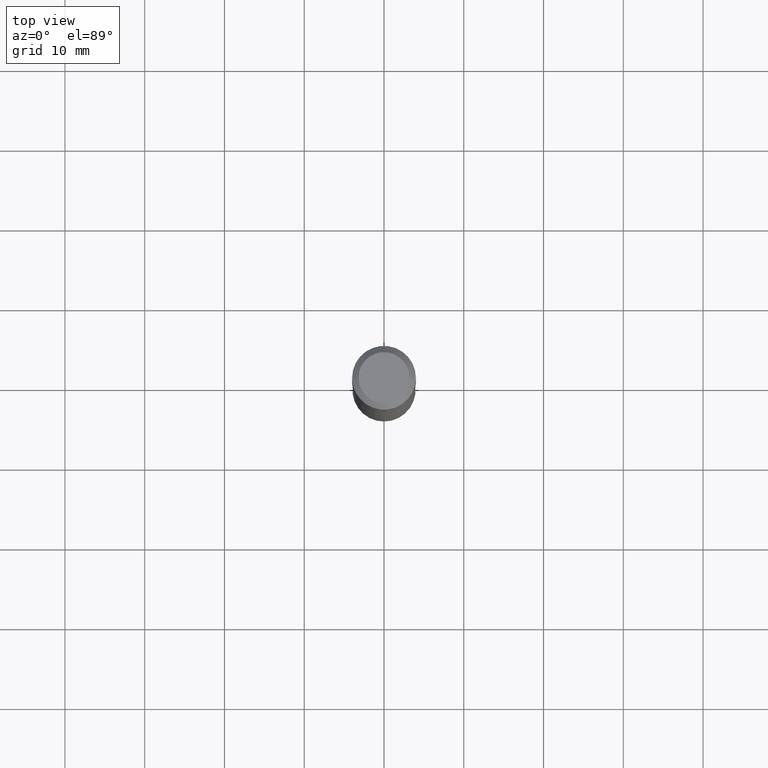
[diagram: clean part render]
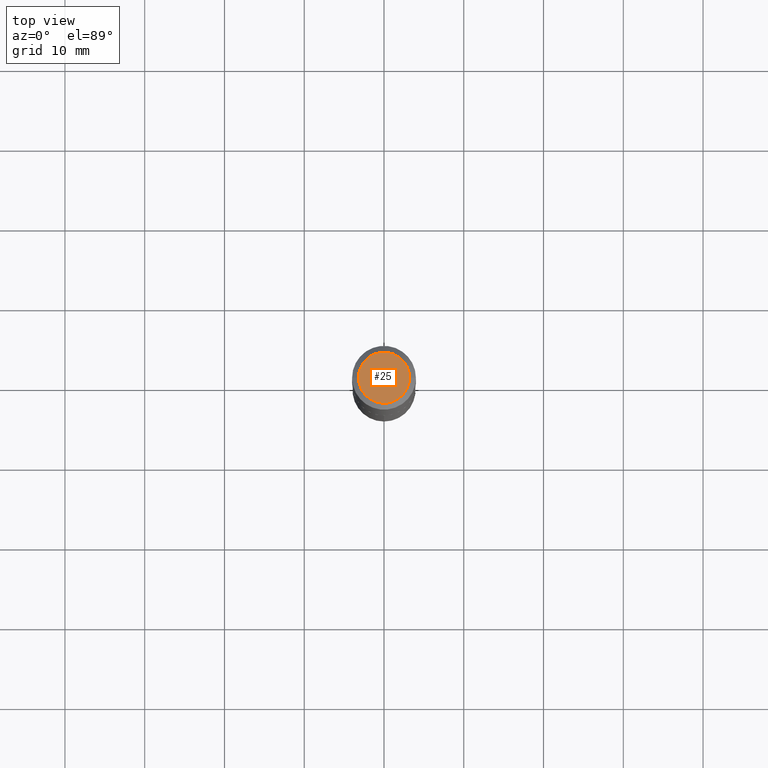
[diagram: same view with one face highlighted and labeled with its STEP entity id]
A machine part, top view. The second image highlights one B-rep face of the part: STEP entity #25.
In plain terms, the highlighted planar face has unit normal (0, -0, -1).
Its self-contained STEP definition (entity closure, byte-faithful):
#13 = DIRECTION ( 'NONE',  ( -2.445468806185136597E-29, 3.491481338843145583E-15, 1.000000000000000000 ) ) ;
#25 = ADVANCED_FACE ( 'NONE', ( #244 ), #361, .F. ) ;
#53 = DIRECTION ( 'NONE',  ( -1.000000000000000000, 6.982962677686265922E-15, -4.876176775795935793E-29 ) ) ;
#58 = ORIENTED_EDGE ( 'NONE', *, *, #328, .T. ) ;
#70 = CARTESIAN_POINT ( 'NONE',  ( -0.1260000000000000009, 9.348441284752484904E-16, 3.860086710906114178E-18 ) ) ;
#116 = DIRECTION ( 'NONE',  ( 1.000000000000000000, -6.982962677686265922E-15, 4.876281427513067258E-29 ) ) ;
#122 = AXIS2_PLACEMENT_3D ( 'NONE', #283, #356, #53 ) ;
#148 = CARTESIAN_POINT ( 'NONE',  ( -9.439721640706201686E-47, 1.347742071746726764E-32, 3.860086710912459732E-18 ) ) ;
#149 = EDGE_CURVE ( 'NONE', #481, #161, #482, .T. ) ;
#154 = ORIENTED_EDGE ( 'NONE', *, *, #149, .T. ) ;
#161 = VERTEX_POINT ( 'NONE', #70 ) ;
#169 = AXIS2_PLACEMENT_3D ( 'NONE', #464, #13, #116 ) ;
#184 = DIRECTION ( 'NONE',  ( 1.000000000000000000, -6.982962677686265922E-15, 4.876281427513067258E-29 ) ) ;
#241 = EDGE_LOOP ( 'NONE', ( #58, #154 ) ) ;
#244 = FACE_OUTER_BOUND ( 'NONE', #241, .T. ) ;
#256 = DIRECTION ( 'NONE',  ( -2.445468806185136597E-29, 3.491481338843145583E-15, 1.000000000000000000 ) ) ;
#283 = CARTESIAN_POINT ( 'NONE',  ( -4.719860820353100843E-47, 6.738710358733633822E-33, 1.930043355456229866E-18 ) ) ;
#289 = CARTESIAN_POINT ( 'NONE',  ( 0.1260000000000000009, -1.027466422270894443E-15, 3.860086710919128072E-18 ) ) ;
#328 = EDGE_CURVE ( 'NONE', #161, #481, #330, .T. ) ;
#330 = CIRCLE ( 'NONE', #169, 0.1260000000000000009 ) ;
#347 = AXIS2_PLACEMENT_3D ( 'NONE', #148, #256, #184 ) ;
#356 = DIRECTION ( 'NONE',  ( 2.438088387897960049E-29, -3.491481338843145188E-15, -1.000000000000000000 ) ) ;
#361 = PLANE ( 'NONE',  #122 ) ;
#464 = CARTESIAN_POINT ( 'NONE',  ( -9.439721640706201686E-47, 1.347742071746726764E-32, 3.860086710912459732E-18 ) ) ;
#481 = VERTEX_POINT ( 'NONE', #289 ) ;
#482 = CIRCLE ( 'NONE', #347, 0.1260000000000000009 ) ;